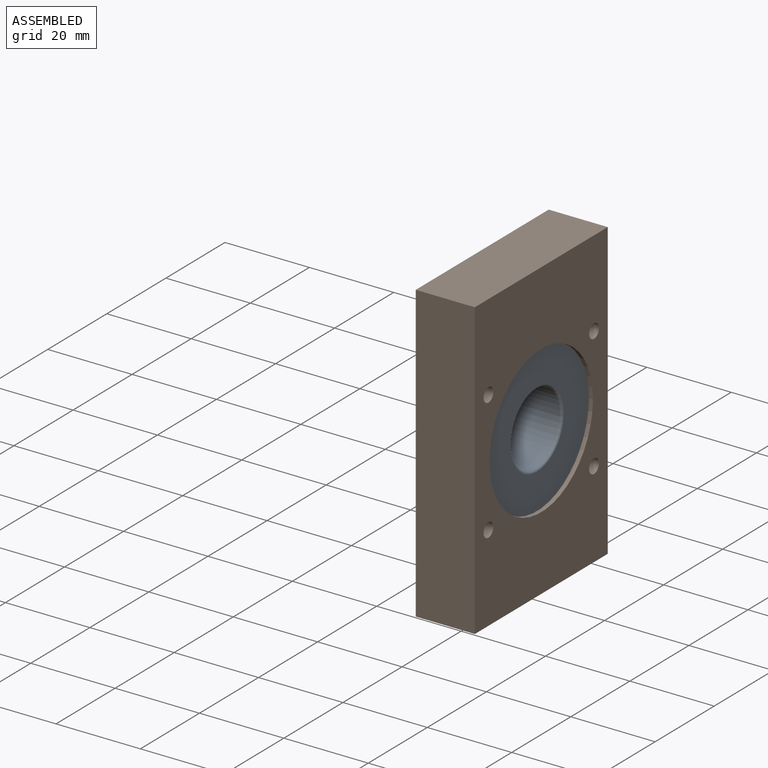
[diagram: assembled view]
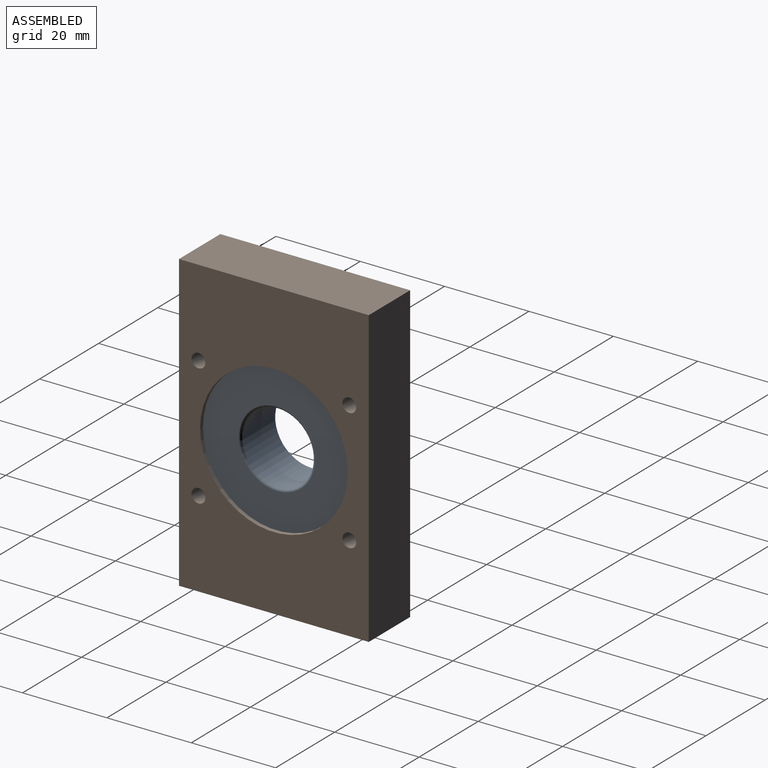
[diagram: assembled view, second angle]
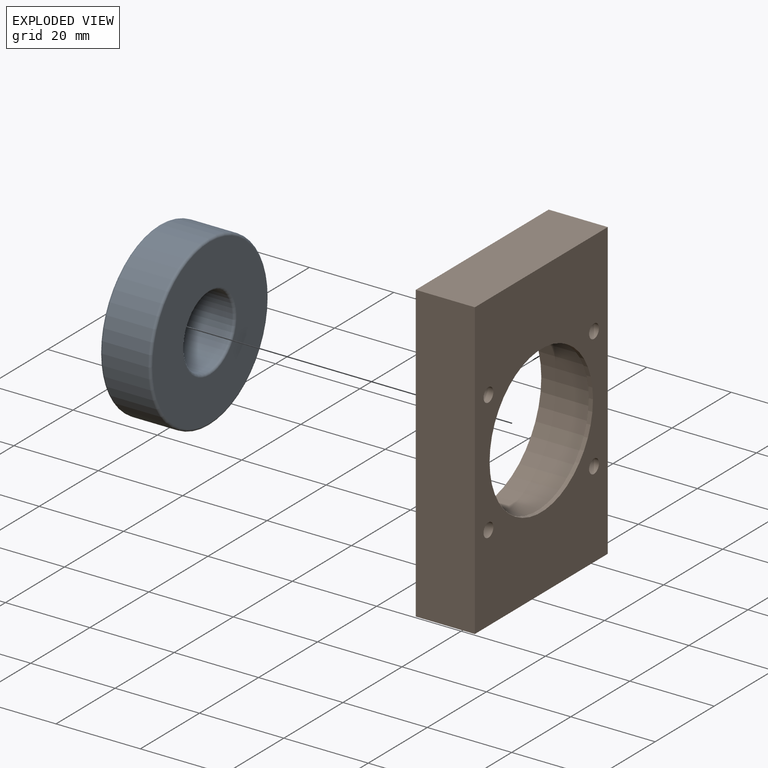
[diagram: exploded view]
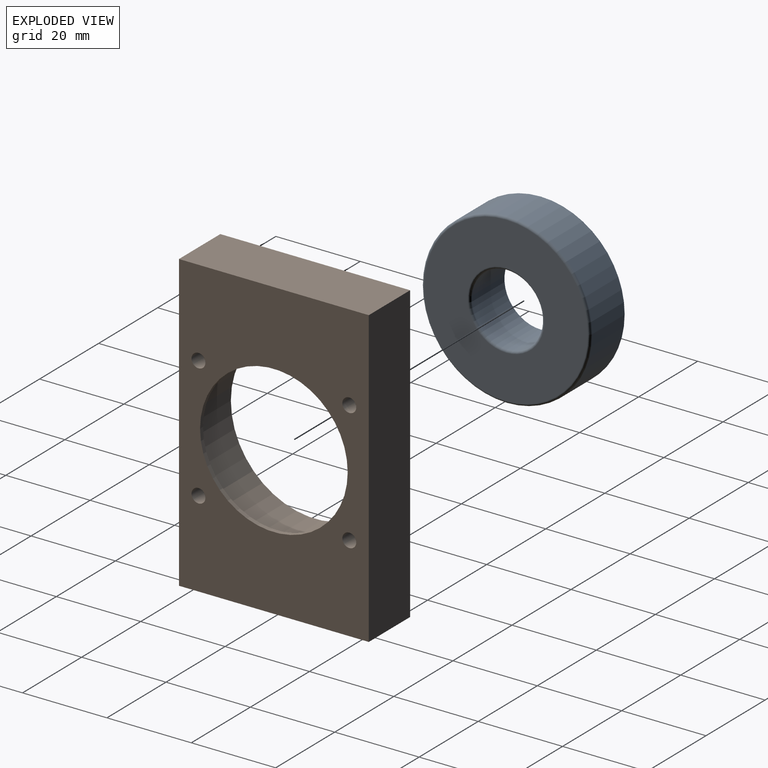
[diagram: exploded view, second angle]
ASSEMBLY  parts=2 mates=2
PART A: 8 faces, bbox 12x43.3x43.3 mm
  f0: cylinder r=20mm len=40mm, axis (-1,0,0), area 1357.2mm2, adj f4,f7
  f1: plane 38.8x38.8mm, normal (-1,0,0), area 922.2mm2, adj f4,f5
  f2: cylinder r=8.5mm len=17mm, axis (-1,0,0), area 576.8mm2, adj f5,f6
  f3: plane 38.8x38.8mm, normal (1,0,0), area 922.2mm2, adj f6,f7
  f4: torus R=19.4mm, axis (1,0,0), area 117.1mm2, adj f0,f1
  f5: torus R=9.1mm, axis (1,0,0), area 51.6mm2, adj f1,f2
  f6: torus R=9.1mm, axis (1,0,0), area 51.6mm2, adj f2,f3
  f7: torus R=19.4mm, axis (1,0,0), area 117.1mm2, adj f0,f3
PART B: 13 faces, bbox 70x14x45 mm
  f0: plane 70x14mm, normal (0,0,1), area 980mm2, adj f1,f3,f4,f5
  f1: plane 45x14mm, normal (-1,0,0), area 630mm2, adj f0,f2,f4,f5
  f2: plane 70x14mm, normal (0,0,-1), area 980mm2, adj f1,f3,f4,f5
  f3: plane 45x14mm, normal (1,0,0), area 630mm2, adj f0,f2,f4,f5
  f4: plane 70x45mm, normal (0,-1,0), area 1859.2mm2, adj f0,f1,f2,f3,f6,f9,f10,f11
  f5: plane 70x45mm, normal (0,1,0), area 2153.7mm2, adj f0,f1,f2,f3,f8,f9,f10,f11
  f6: cylinder r=20mm len=40mm, axis (0,-1,0), area 1633.6mm2, adj f4,f7
  f7: plane 40x40mm, normal (0,-1,0), area 294.5mm2, adj f6,f8
  f8: cylinder r=17.5mm len=35mm, axis (0,-1,0), area 110mm2, adj f5,f7
  f9: cylinder r=1.65mm len=14mm, axis (0,-1,0), area 145.1mm2, adj f4,f5
  f10: cylinder r=1.65mm len=14mm, axis (0,-1,0), area 145.1mm2, adj f4,f5
  f11: cylinder r=1.65mm len=14mm, axis (0,-1,0), area 145.1mm2, adj f4,f5
  f12: cylinder r=1.65mm len=14mm, axis (0,-1,0), area 145.1mm2, adj f4,f5
PLACE A t=(43.5,20.72,-6.59)mm
PLACE B rot(axis=(-0.58,-0.58,-0.58),120deg) t=(44.5,20.72,-6.59)mm
MATE cylindrical B.f6 <-> A.f0  axis (-1,0,0) through (37,20.72,-6.59)mm
MATE fastened B.f6 <-> A.f0  axis (-1,0,0) through (43.5,20.72,-6.59)mm
